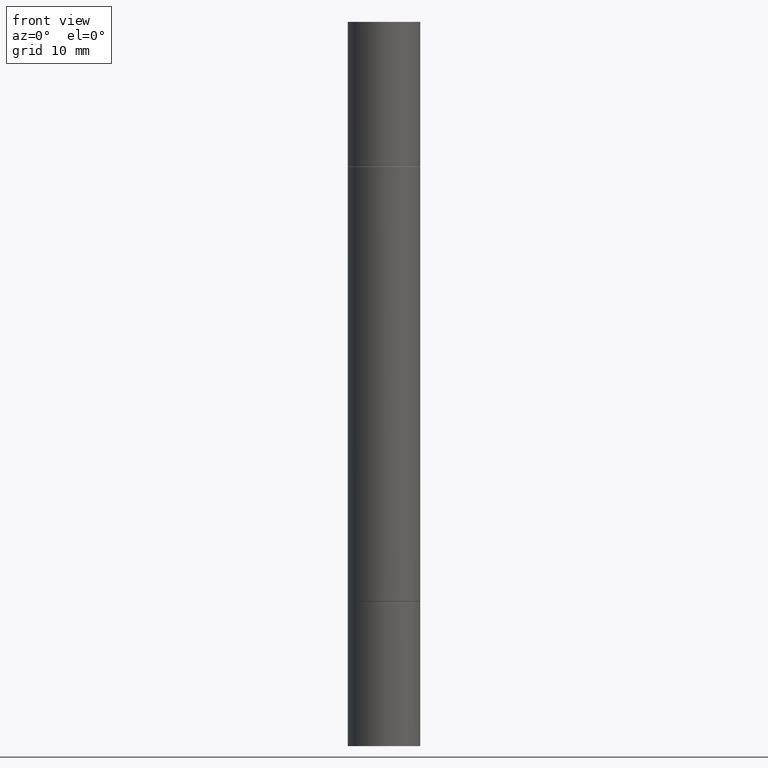
[diagram: clean part render]
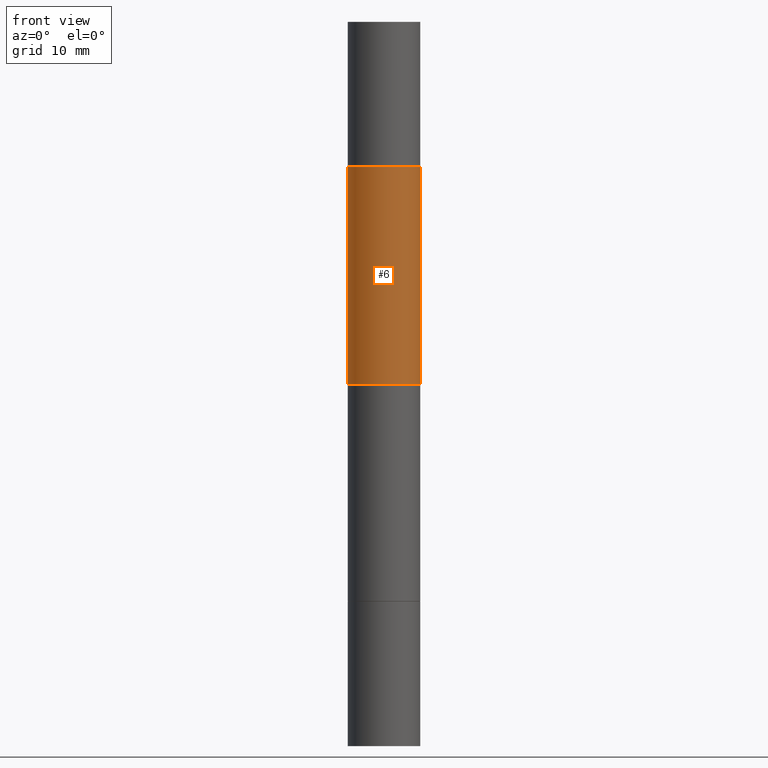
[diagram: same view with one face highlighted and labeled with its STEP entity id]
A machine part, front view. The second image highlights one B-rep face of the part: STEP entity #6.
In plain terms, the highlighted cylindrical surface (edge-blend (fillet) strip) has radius 3.175 mm, axis along (-0, -0, -1).
Its self-contained STEP definition (entity closure, byte-faithful):
#6 = ADVANCED_FACE ( 'NONE', ( #488 ), #642, .T. ) ;
#10 = CIRCLE ( 'NONE', #606, 0.1249999999999999861 ) ;
#39 = CARTESIAN_POINT ( 'NONE',  ( 3.056836007731420185E-29, -4.364351673553931682E-15, -1.249999999999999778 ) ) ;
#43 = EDGE_CURVE ( 'NONE', #546, #142, #10, .T. ) ;
#58 = VERTEX_POINT ( 'NONE', #105 ) ;
#83 = DIRECTION ( 'NONE',  ( 0.000000000000000000, 1.000000000000000000, -4.370956789862825883E-15 ) ) ;
#103 = DIRECTION ( 'NONE',  ( 2.445468806185136597E-29, 3.492890411551752677E-15, 1.000000000000000000 ) ) ;
#105 = CARTESIAN_POINT ( 'NONE',  ( -0.1249999999999998612, -2.198701964706358019E-15, -1.249999999999999778 ) ) ;
#132 = DIRECTION ( 'NONE',  ( -2.445468806185136877E-29, -3.492890411551753071E-15, -1.000000000000000000 ) ) ;
#133 = ORIENTED_EDGE ( 'NONE', *, *, #264, .F. ) ;
#142 = VERTEX_POINT ( 'NONE', #373 ) ;
#164 = DIRECTION ( 'NONE',  ( 1.000000000000000000, -6.982962677686267499E-15, 0.000000000000000000 ) ) ;
#170 = CARTESIAN_POINT ( 'NONE',  ( -0.1249999999999999861, -8.906145055802259979E-16, -0.5009999999999996678 ) ) ;
#182 = LINE ( 'NONE', #601, #523 ) ;
#185 = DIRECTION ( 'NONE',  ( -0.000000000000000000, -3.492185875197449130E-15, -1.000000000000000000 ) ) ;
#193 = CARTESIAN_POINT ( 'NONE',  ( 0.1249999999999998612, -3.929134549138581225E-15, -1.249999999999999778 ) ) ;
#222 = CARTESIAN_POINT ( 'NONE',  ( 4.888492143564087591E-29, -1.748176755301667838E-15, -0.5009999999999996678 ) ) ;
#228 = DIRECTION ( 'NONE',  ( 1.000000000000000000, -6.982962677686262766E-15, 0.000000000000000000 ) ) ;
#264 = EDGE_CURVE ( 'NONE', #142, #679, #182, .T. ) ;
#327 = ORIENTED_EDGE ( 'NONE', *, *, #328, .F. ) ;
#328 = EDGE_CURVE ( 'NONE', #679, #58, #349, .T. ) ;
#330 = VECTOR ( 'NONE', #410, 39.37007874015748143 ) ;
#349 = CIRCLE ( 'NONE', #672, 0.1249999999999998612 ) ;
#355 = CARTESIAN_POINT ( 'NONE',  ( -0.1249999999999998612, -7.872902438272180196E-15, -2.499999999999999556 ) ) ;
#373 = CARTESIAN_POINT ( 'NONE',  ( 0.1249999999999999861, -2.621047090012450585E-15, -0.5009999999999996678 ) ) ;
#378 = ORIENTED_EDGE ( 'NONE', *, *, #396, .T. ) ;
#396 = EDGE_CURVE ( 'NONE', #546, #58, #624, .T. ) ;
#402 = AXIS2_PLACEMENT_3D ( 'NONE', #423, #588, #228 ) ;
#410 = DIRECTION ( 'NONE',  ( -2.445468806185136877E-29, -3.492890411551753071E-15, -1.000000000000000000 ) ) ;
#423 = CARTESIAN_POINT ( 'NONE',  ( 0.000000000000000000, -8.730464687993621641E-15, -2.499999999999999556 ) ) ;
#473 = EDGE_LOOP ( 'NONE', ( #548, #378, #327, #133 ) ) ;
#488 = FACE_OUTER_BOUND ( 'NONE', #473, .T. ) ;
#523 = VECTOR ( 'NONE', #132, 39.37007874015748143 ) ;
#546 = VERTEX_POINT ( 'NONE', #170 ) ;
#548 = ORIENTED_EDGE ( 'NONE', *, *, #43, .F. ) ;
#588 = DIRECTION ( 'NONE',  ( -2.445468806185136597E-29, -3.492890411551752677E-15, -1.000000000000000000 ) ) ;
#601 = CARTESIAN_POINT ( 'NONE',  ( 0.1249999999999998612, -9.603335022704403402E-15, -2.499999999999999556 ) ) ;
#606 = AXIS2_PLACEMENT_3D ( 'NONE', #222, #103, #164 ) ;
#624 = LINE ( 'NONE', #355, #330 ) ;
#642 = CYLINDRICAL_SURFACE ( 'NONE', #402, 0.1249999999999998612 ) ;
#672 = AXIS2_PLACEMENT_3D ( 'NONE', #39, #185, #83 ) ;
#679 = VERTEX_POINT ( 'NONE', #193 ) ;